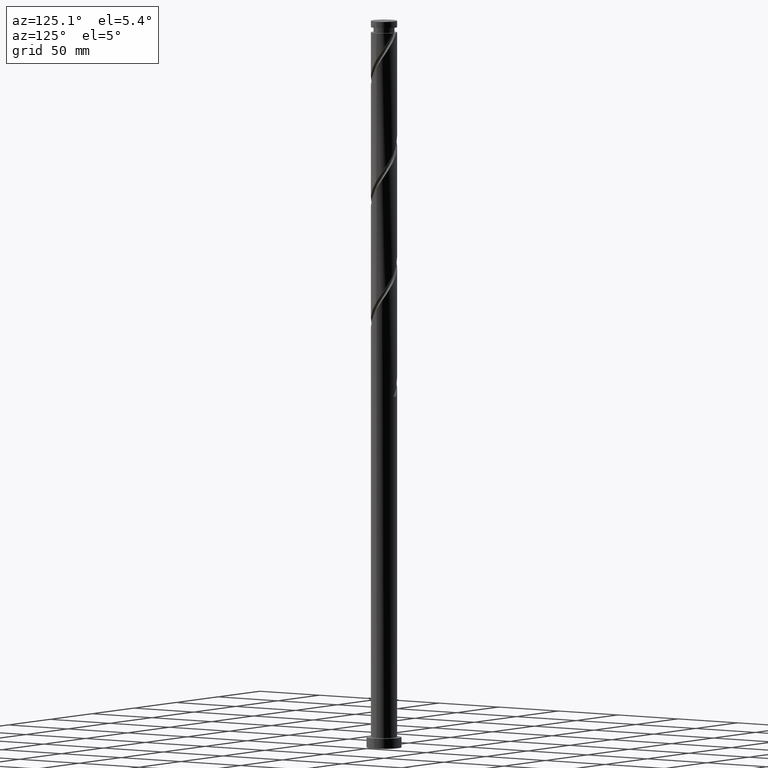
[diagram: clean part render]
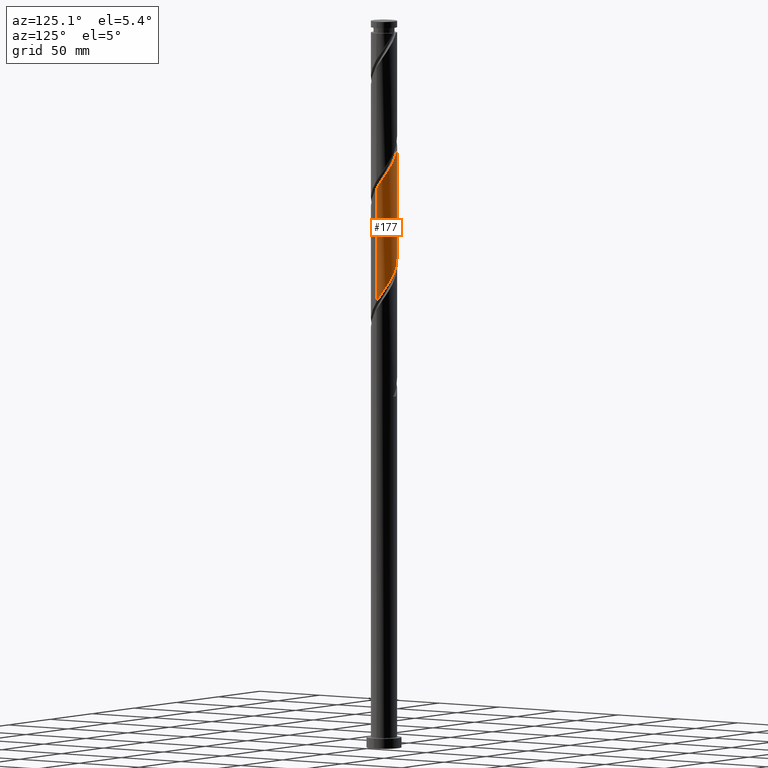
[diagram: same view with one face highlighted and labeled with its STEP entity id]
A machine part, auxiliary view. The second image highlights one B-rep face of the part: STEP entity #177.
In plain terms, the highlighted cylindrical surface (edge-blend (fillet) strip) has radius 9 mm, axis along (-0, -0, -1).
Its self-contained STEP definition (entity closure, byte-faithful):
#20 = CARTESIAN_POINT ( 'NONE',  ( 0.03586761831831040276, 8.999928528269329320, 328.0024786791135512 ) ) ;
#31 = CARTESIAN_POINT ( 'NONE',  ( 7.013565241690913332, 5.709259818917114870, 316.2837286791137217 ) ) ;
#54 = FACE_OUTER_BOUND ( 'NONE', #1640, .T. ) ;
#63 = EDGE_CURVE ( 'NONE', #1043, #965, #1887, .T. ) ;
#67 = VECTOR ( 'NONE', #1737, 1000.000000000000000 ) ;
#96 = CARTESIAN_POINT ( 'NONE',  ( 4.970269554913029353, 7.503094065217689845, 398.3149786791136080 ) ) ;
#137 = CARTESIAN_POINT ( 'NONE',  ( -8.328575704621288267, 3.410986181794392280, 421.7524786791136080 ) ) ;
#150 = ORIENTED_EDGE ( 'NONE', *, *, #63, .F. ) ;
#170 = ORIENTED_EDGE ( 'NONE', *, *, #435, .F. ) ;
#177 = ADVANCED_FACE ( 'NONE', ( #54 ), #1161, .T. ) ;
#181 = CARTESIAN_POINT ( 'NONE',  ( 3.477260898682816403, 8.301123818043651070, 322.7941453457803505 ) ) ;
#190 = CARTESIAN_POINT ( 'NONE',  ( 6.389272728671397061, 6.338548256395620584, 317.5858120124469224 ) ) ;
#244 = EDGE_CURVE ( 'NONE', #1528, #965, #1310, .T. ) ;
#264 = CARTESIAN_POINT ( 'NONE',  ( -1.790977386791922754, 8.820000000000012719, 408.7316453457804073 ) ) ;
#287 = CARTESIAN_POINT ( 'NONE',  ( 8.301123818043667058, 3.477260898682817736, 390.5024786791136080 ) ) ;
#295 = CARTESIAN_POINT ( 'NONE',  ( 6.338548256395635683, 6.389272728671402390, 395.7108120124470361 ) ) ;
#326 = CARTESIAN_POINT ( 'NONE',  ( -7.463240103083756516, 5.029915224307700328, 341.0233120124468655 ) ) ;
#345 = CARTESIAN_POINT ( 'NONE',  ( 0.000000000000000000, 0.000000000000000000, 500.0000000000000000 ) ) ;
#419 = CARTESIAN_POINT ( 'NONE',  ( -6.389272728671405943, 6.338548256395632130, 416.5441453457802936 ) ) ;
#430 = CARTESIAN_POINT ( 'NONE',  ( -9.000000000000008882, 0.8683183343608529281, 425.6321349290340095 ) ) ;
#435 = EDGE_CURVE ( 'NONE', #1334, #1043, #1537, .T. ) ;
#454 = CARTESIAN_POINT ( 'NONE',  ( 1.720620522612493319, 8.833994850415352929, 403.5233120124469792 ) ) ;
#464 = CARTESIAN_POINT ( 'NONE',  ( 5.709259818917125529, 7.013565241690921326, 397.0128953457804073 ) ) ;
#509 = ORIENTED_EDGE ( 'NONE', *, *, #244, .T. ) ;
#518 = CARTESIAN_POINT ( 'NONE',  ( 8.328575704621277609, 3.410986181794382066, 312.3774786791135512 ) ) ;
#580 = CARTESIAN_POINT ( 'NONE',  ( -0.03586761831830471980, 8.999928528269348860, 406.1274786791135512 ) ) ;
#592 = CARTESIAN_POINT ( 'NONE',  ( -7.992622888744461029, 4.231279290908926960, 420.4503953457804073 ) ) ;
#615 = CARTESIAN_POINT ( 'NONE',  ( 6.967836693874138732, 5.764980215651893225, 394.4087286791137217 ) ) ;
#618 = CARTESIAN_POINT ( 'NONE',  ( -9.000000000000000000, 0.01793388036833214877, 348.8621554359266952 ) ) ;
#690 = CARTESIAN_POINT ( 'NONE',  ( 8.833994850415340494, 1.720620522612485548, 309.7733120124469224 ) ) ;
#767 = CARTESIAN_POINT ( 'NONE',  ( -9.000000000000017764, -3.187149201132904323E-15, 426.9081150344500770 ) ) ;
#785 = CARTESIAN_POINT ( 'NONE',  ( 8.996395876206099373, 0.9222832091817362299, 386.5962286791136648 ) ) ;
#836 = CARTESIAN_POINT ( 'NONE',  ( -0.8505479725451141615, 9.003461180332582359, 329.3045620124470361 ) ) ;
#845 = CARTESIAN_POINT ( 'NONE',  ( -9.000000000000000000, -6.754519710471182682E-15, 348.8885089904438246 ) ) ;
#926 = CARTESIAN_POINT ( 'NONE',  ( 0.8505479725451177142, 9.003461180332596570, 404.8253953457804073 ) ) ;
#935 = CARTESIAN_POINT ( 'NONE',  ( 8.999928528269348860, 0.03586761831830513614, 385.2941453457802936 ) ) ;
#938 = CARTESIAN_POINT ( 'NONE',  ( -8.996395876206085163, 0.9222832091817345646, 347.5337286791137217 ) ) ;
#944 = CARTESIAN_POINT ( 'NONE',  ( -5.029915224307705657, 7.463240103083769839, 413.9399786791136080 ) ) ;
#953 = CARTESIAN_POINT ( 'NONE',  ( -7.503094065217693398, 4.970269554913027577, 419.1483120124469224 ) ) ;
#965 = VERTEX_POINT ( 'NONE', #1992 ) ;
#975 = CARTESIAN_POINT ( 'NONE',  ( -6.967836693874127185, 5.764980215651887008, 339.7212286791137217 ) ) ;
#985 = CARTESIAN_POINT ( 'NONE',  ( 7.503094065217680075, 4.970269554913014254, 314.9816453457802368 ) ) ;
#992 = CARTESIAN_POINT ( 'NONE',  ( -9.000000000000019540, -3.187149201132904323E-15, 426.9081150344500770 ) ) ;
#1006 = CARTESIAN_POINT ( 'NONE',  ( 8.999999999999996447, 0.8683183343608603666, 308.4978224291932065 ) ) ;
#1017 = CARTESIAN_POINT ( 'NONE',  ( -4.231279290908919855, 7.992622888744453036, 334.5128953457804641 ) ) ;
#1043 = VERTEX_POINT ( 'NONE', #845 ) ;
#1067 = CARTESIAN_POINT ( 'NONE',  ( -8.833994850415354705, 1.720620522612488434, 424.3566453457804073 ) ) ;
#1092 = CARTESIAN_POINT ( 'NONE',  ( 8.820000000000012719, 1.790977386791923198, 387.8983120124469792 ) ) ;
#1101 = CARTESIAN_POINT ( 'NONE',  ( 7.463240103083767174, 5.029915224307708321, 393.1066453457804073 ) ) ;
#1110 = CARTESIAN_POINT ( 'NONE',  ( -5.764980215651893225, 6.967836693874138732, 415.2420620124471498 ) ) ;
#1161 = CYLINDRICAL_SURFACE ( 'NONE', #1448, 9.000000000000001776 ) ;
#1183 = CARTESIAN_POINT ( 'NONE',  ( 5.029915224307704769, 7.463240103083752075, 320.1899786791136080 ) ) ;
#1196 = DIRECTION ( 'NONE',  ( -0.000000000000000000, -0.000000000000000000, -1.000000000000000000 ) ) ;
#1224 = CARTESIAN_POINT ( 'NONE',  ( -8.664528520498114617, 2.590693072679859377, 423.0545620124470361 ) ) ;
#1258 = CARTESIAN_POINT ( 'NONE',  ( 3.410986181794391836, 8.328575704621288267, 400.9191453457803505 ) ) ;
#1263 = CARTESIAN_POINT ( 'NONE',  ( -8.301123818043652847, 3.477260898682812851, 343.6274786791136648 ) ) ;
#1268 = CARTESIAN_POINT ( 'NONE',  ( -3.477260898682817736, 8.301123818043667058, 411.3358120124469792 ) ) ;
#1310 = LINE ( 'NONE', #1514, #1413 ) ;
#1320 = DIRECTION ( 'NONE',  ( -1.000000000000000000, 0.000000000000000000, 0.000000000000000000 ) ) ;
#1331 = CARTESIAN_POINT ( 'NONE',  ( -1.720620522612483771, 8.833994850415340494, 330.6066453457802936 ) ) ;
#1334 = VERTEX_POINT ( 'NONE', #767 ) ;
#1357 = CARTESIAN_POINT ( 'NONE',  ( 8.664528520498102182, 2.590693072679852715, 311.0753953457802936 ) ) ;
#1383 =( BOUNDED_CURVE ( )  B_SPLINE_CURVE ( 2, ( #1897, #1395, #935, #785, #1092, #1736, #287, #1579, #1101, #615, #295, #464, #96, #1907, #1258, #2036, #454, #926, #580, #1747, #264, #1557, #1268, #1874, #944, #1110, #419, #2048, #953, #592, #137, #1224, #1067, #430, #992 ),
 .UNSPECIFIED., .F., .T. ) 
 B_SPLINE_CURVE_WITH_KNOTS ( ( 3, 2, 2, 2, 2, 2, 2, 2, 2, 2, 2, 2, 2, 2, 2, 2, 2, 3 ),
 ( 0.4295286902180870947, 0.4296875000000000000, 0.4375000000000000000, 0.4453125000000000000, 0.4531250000000000000, 0.4609375000000000000, 0.4687500000000000000, 0.4765625000000000000, 0.4843750000000000000, 0.4921875000000000000, 0.5000000000000000000, 0.5078125000000000000, 0.5156250000000000000, 0.5234375000000000000, 0.5312500000000000000, 0.5390625000000000000, 0.5468750000000000000, 0.5545286902180870392 ),
 .UNSPECIFIED. ) 
 CURVE ( )  GEOMETRIC_REPRESENTATION_ITEM ( )  RATIONAL_B_SPLINE_CURVE ( ( 0.9089165573359386796, 0.9090019243628435497, 0.9090909090909354839, 0.9047133878838415910, 0.9090909090909354839, 0.9047133878838415910, 0.9090909090909354839, 0.9047133878838415910, 0.9090909090909354839, 0.9047133878838415910, 0.9090909090909354839, 0.9047133878838415910, 0.9090909090909354839, 0.9047133878838415910, 0.9090909090909354839, 0.9047133878838415910, 0.9090909090909354839, 0.9047133878838415910, 0.9090909090909354839, 0.9047133878838415910, 0.9090909090909354839, 0.9047133878838415910, 0.9090909090909354839, 0.9047133878838415910, 0.9090909090909354839, 0.9047133878838415910, 0.9090909090909354839, 0.9047133878838415910, 0.9090909090909354839, 0.9047133878838415910, 0.9090909090909354839, 0.9047133878838415910, 0.9090909090909354839, 0.9048023726119335253, 0.9089165573359386796 ) ) 
 REPRESENTATION_ITEM ( '' )  );
#1395 = CARTESIAN_POINT ( 'NONE',  ( 9.000000000000015987, 0.01793388036833272123, 385.2678019223006913 ) ) ;
#1413 = VECTOR ( 'NONE', #1196, 1000.000000000000000 ) ;
#1441 = ORIENTED_EDGE ( 'NONE', *, *, #1445, .F. ) ;
#1445 = EDGE_CURVE ( 'NONE', #1528, #1334, #1383, .T. ) ;
#1448 = AXIS2_PLACEMENT_3D ( 'NONE', #345, #1822, #1320 ) ;
#1471 = CARTESIAN_POINT ( 'NONE',  ( 7.992622888744451259, 4.231279290908921631, 313.6795620124470929 ) ) ;
#1480 = CARTESIAN_POINT ( 'NONE',  ( 5.764980215651887896, 6.967836693874123632, 318.8878953457803505 ) ) ;
#1502 = CARTESIAN_POINT ( 'NONE',  ( 1.790977386791925197, 8.820000000000000284, 325.3983120124469792 ) ) ;
#1514 = CARTESIAN_POINT ( 'NONE',  ( 9.000000000000001776, 1.102182119232617911E-15, 500.0000000000000000 ) ) ;
#1528 = VERTEX_POINT ( 'NONE', #1616 ) ;
#1537 = LINE ( 'NONE', #1704, #67 ) ;
#1557 = CARTESIAN_POINT ( 'NONE',  ( -2.659671564402114274, 8.643604123793931393, 410.0337286791136648 ) ) ;
#1579 = CARTESIAN_POINT ( 'NONE',  ( 7.958643512293401834, 4.294850232963517200, 391.8045620124470361 ) ) ;
#1582 = CARTESIAN_POINT ( 'NONE',  ( -8.820000000000000284, 1.790977386791923864, 346.2316453457802936 ) ) ;
#1616 = CARTESIAN_POINT ( 'NONE',  ( 9.000000000000015987, 1.262931168823190377E-14, 385.2414483677833914 ) ) ;
#1628 = CARTESIAN_POINT ( 'NONE',  ( -6.338548256395620584, 6.389272728671397950, 338.4191453457802936 ) ) ;
#1640 = EDGE_LOOP ( 'NONE', ( #1441, #509, #150, #170 ) ) ;
#1647 = CARTESIAN_POINT ( 'NONE',  ( -4.970269554913016918, 7.503094065217680075, 335.8149786791135512 ) ) ;
#1672 = CARTESIAN_POINT ( 'NONE',  ( 0.9222832091817348976, 8.996395876206085163, 326.7003953457804073 ) ) ;
#1704 = CARTESIAN_POINT ( 'NONE',  ( -9.000000000000001776, 0.000000000000000000, 500.0000000000000000 ) ) ;
#1736 = CARTESIAN_POINT ( 'NONE',  ( 8.643604123793931393, 2.659671564402110722, 389.2003953457804641 ) ) ;
#1737 = DIRECTION ( 'NONE',  ( -0.000000000000000000, -0.000000000000000000, -1.000000000000000000 ) ) ;
#1747 = CARTESIAN_POINT ( 'NONE',  ( -0.9222832091817357858, 8.996395876206099373, 407.4295620124470361 ) ) ;
#1751 = CARTESIAN_POINT ( 'NONE',  ( -8.643604123793917182, 2.659671564402113386, 344.9295620124469224 ) ) ;
#1779 = CARTESIAN_POINT ( 'NONE',  ( -8.999928528269329320, 0.03586761831831083297, 348.8358120124469792 ) ) ;
#1790 = CARTESIAN_POINT ( 'NONE',  ( -9.000000000000000000, -6.754519710471182682E-15, 348.8885089904438246 ) ) ;
#1799 = CARTESIAN_POINT ( 'NONE',  ( -2.590693072679852715, 8.664528520498102182, 331.9087286791136648 ) ) ;
#1822 = DIRECTION ( 'NONE',  ( -0.000000000000000000, -0.000000000000000000, -1.000000000000000000 ) ) ;
#1833 = CARTESIAN_POINT ( 'NONE',  ( 9.000000000000000000, 7.742349579828170467E-15, 307.2218423237771390 ) ) ;
#1874 = CARTESIAN_POINT ( 'NONE',  ( -4.294850232963518977, 7.958643512293401834, 412.6378953457802936 ) ) ;
#1887 =( BOUNDED_CURVE ( )  B_SPLINE_CURVE ( 2, ( #1790, #618, #1779, #938, #1582, #1751, #1263, #1912, #326, #975, #1628, #1997, #1647, #1017, #1971, #1799, #1331, #836, #20, #1672, #1502, #1983, #181, #2009, #1183, #1480, #190, #31, #985, #1471, #518, #1357, #690, #1006, #1833 ),
 .UNSPECIFIED., .F., .T. ) 
 B_SPLINE_CURVE_WITH_KNOTS ( ( 3, 2, 2, 2, 2, 2, 2, 2, 2, 2, 2, 2, 2, 2, 2, 2, 2, 3 ),
 ( 0.6795286902180870392, 0.6796875000000000000, 0.6875000000000000000, 0.6953125000000000000, 0.7031250000000000000, 0.7109375000000000000, 0.7187500000000000000, 0.7265625000000000000, 0.7343750000000000000, 0.7421875000000000000, 0.7500000000000000000, 0.7578125000000000000, 0.7656250000000000000, 0.7734375000000000000, 0.7812500000000000000, 0.7890625000000000000, 0.7968750000000000000, 0.8045286902180869282 ),
 .UNSPECIFIED. ) 
 CURVE ( )  GEOMETRIC_REPRESENTATION_ITEM ( )  RATIONAL_B_SPLINE_CURVE ( ( 0.9089165573359326844, 0.9090019243628375545, 0.9090909090909294887, 0.9047133878838355958, 0.9090909090909294887, 0.9047133878838355958, 0.9090909090909294887, 0.9047133878838355958, 0.9090909090909294887, 0.9047133878838355958, 0.9090909090909294887, 0.9047133878838355958, 0.9090909090909294887, 0.9047133878838355958, 0.9090909090909294887, 0.9047133878838355958, 0.9090909090909294887, 0.9047133878838355958, 0.9090909090909294887, 0.9047133878838355958, 0.9090909090909294887, 0.9047133878838355958, 0.9090909090909294887, 0.9047133878838355958, 0.9090909090909294887, 0.9047133878838355958, 0.9090909090909294887, 0.9047133878838355958, 0.9090909090909294887, 0.9047133878838355958, 0.9090909090909294887, 0.9047133878838355958, 0.9090909090909294887, 0.9048023726119275301, 0.9089165573359326844 ) ) 
 REPRESENTATION_ITEM ( '' )  );
#1897 = CARTESIAN_POINT ( 'NONE',  ( 9.000000000000015987, 1.262931168823190377E-14, 385.2414483677833914 ) ) ;
#1907 = CARTESIAN_POINT ( 'NONE',  ( 4.231279290908930513, 7.992622888744459253, 399.6170620124469792 ) ) ;
#1912 = CARTESIAN_POINT ( 'NONE',  ( -7.958643512293389399, 4.294850232963514536, 342.3253953457804073 ) ) ;
#1971 = CARTESIAN_POINT ( 'NONE',  ( -3.410986181794384287, 8.328575704621275833, 333.2108120124469224 ) ) ;
#1983 = CARTESIAN_POINT ( 'NONE',  ( 2.659671564402111610, 8.643604123793918959, 324.0962286791135512 ) ) ;
#1992 = CARTESIAN_POINT ( 'NONE',  ( 9.000000000000000000, 7.742349579828170467E-15, 307.2218423237771958 ) ) ;
#1997 = CARTESIAN_POINT ( 'NONE',  ( -5.709259818917118423, 7.013565241690909779, 337.1170620124470361 ) ) ;
#2009 = CARTESIAN_POINT ( 'NONE',  ( 4.294850232963515424, 7.958643512293386735, 321.4920620124470361 ) ) ;
#2036 = CARTESIAN_POINT ( 'NONE',  ( 2.590693072679860265, 8.664528520498112840, 402.2212286791136648 ) ) ;
#2048 = CARTESIAN_POINT ( 'NONE',  ( -7.013565241690921326, 5.709259818917126417, 417.8462286791136648 ) ) ;